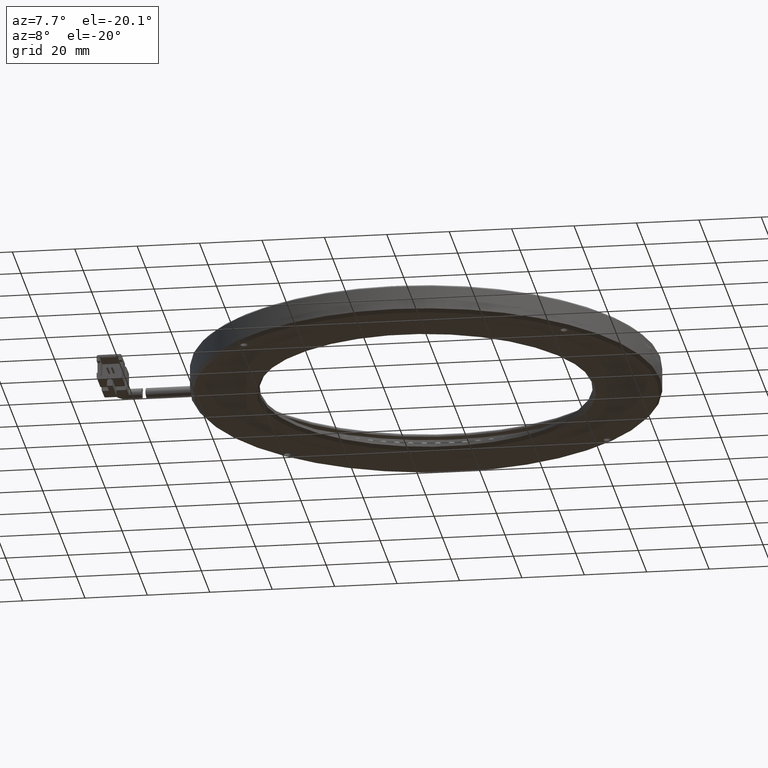
[diagram: clean part render]
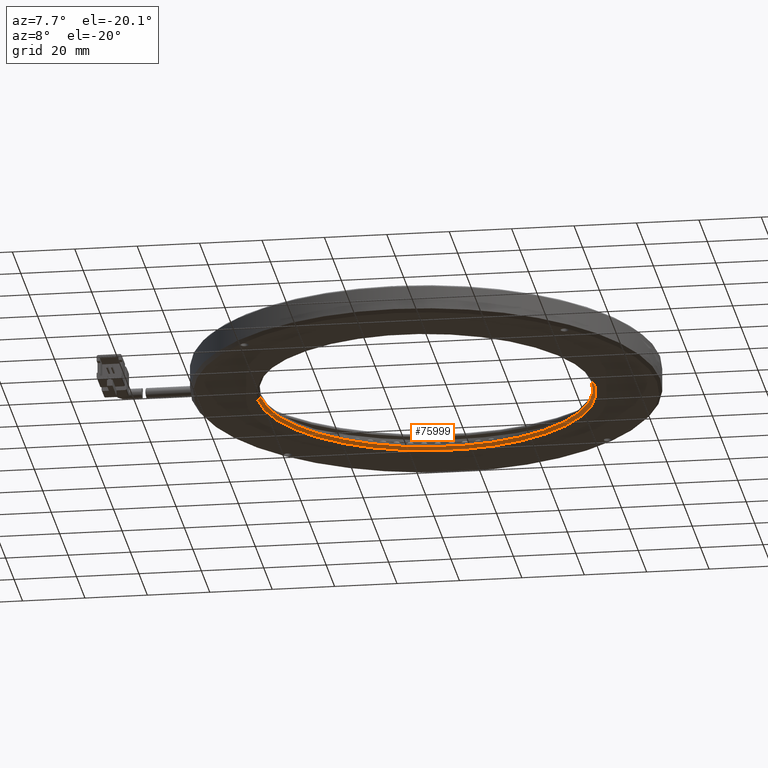
[diagram: same view with one face highlighted and labeled with its STEP entity id]
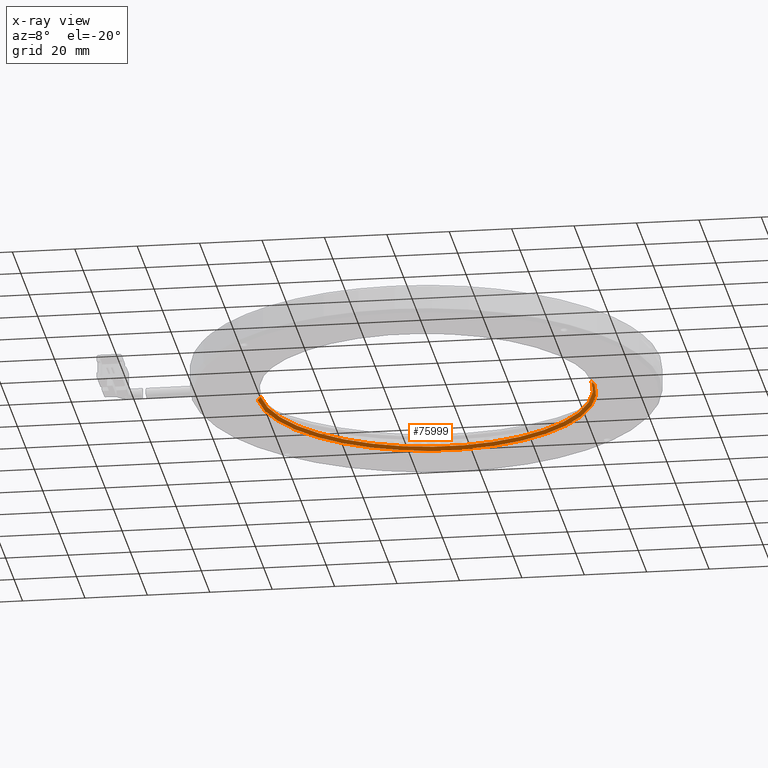
[diagram: x-ray of the same camera — body ghosted, the highlighted face saturated]
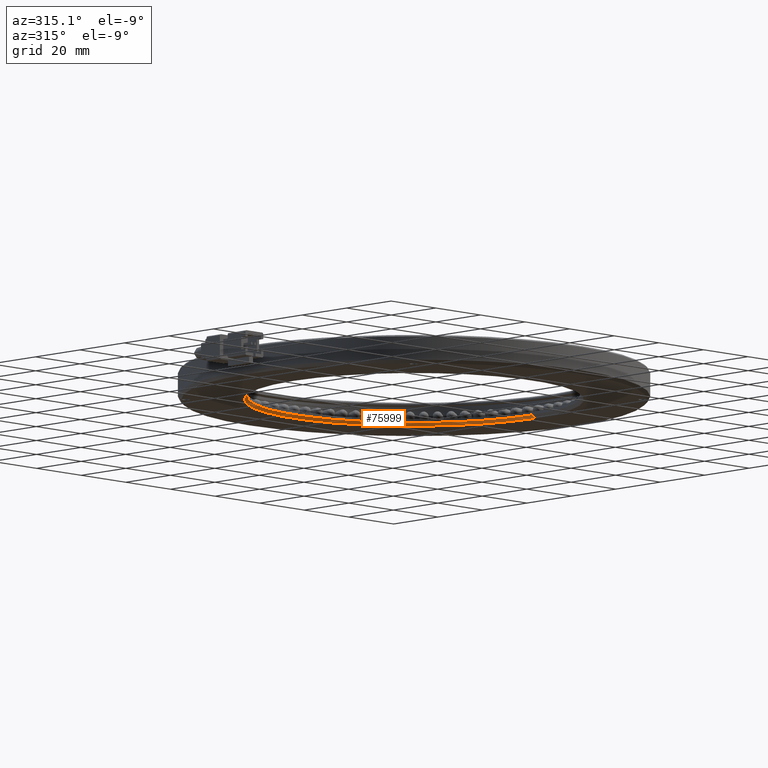
[diagram: same view with one face highlighted and labeled with its STEP entity id]
A machine part, auxiliary view. The second image highlights one B-rep face of the part: STEP entity #75999.
The next image is the same camera in x-ray: the body ghosted, the highlighted face saturated — about 0% of this face is hidden behind the body in this view.
A second angle (auxiliary view) of the same face is appended — the face is thin or edge-on in the first view.
In plain terms, the highlighted conical surface has half-angle 45 deg.
Its self-contained STEP definition (entity closure, byte-faithful):
#2052 = VECTOR ( 'NONE', #21989, 1000.000000000000000 ) ;
#2232 = CONICAL_SURFACE ( 'NONE', #78110, 53.99999999999997900, 0.7853981633974378400 ) ;
#6107 = CARTESIAN_POINT ( 'NONE',  ( 10.82239847715735200, 1.095939086294420100, -2.500000000000068800 ) ) ;
#7751 = CARTESIAN_POINT ( 'NONE',  ( 10.82239847715735200, 1.095939086294420100, -3.500000000000063900 ) ) ;
#8367 = ORIENTED_EDGE ( 'NONE', *, *, #23423, .T. ) ;
#9164 = CARTESIAN_POINT ( 'NONE',  ( -43.17760152284262900, 1.095939086294420100, -3.500000000000063900 ) ) ;
#12236 = DIRECTION ( 'NONE',  ( -1.000000000000000000, 0.0000000000000000000, -2.454797371665292700E-017 ) ) ;
#14433 = DIRECTION ( 'NONE',  ( -1.000000000000000000, 0.0000000000000000000, 0.0000000000000000000 ) ) ;
#15310 = EDGE_CURVE ( 'NONE', #19440, #31959, #55964, .T. ) ;
#15868 = CARTESIAN_POINT ( 'NONE',  ( 64.82239847715733600, 1.095939086294426700, -3.500000000000063900 ) ) ;
#17315 = AXIS2_PLACEMENT_3D ( 'NONE', #6107, #48717, #12236 ) ;
#17938 = CIRCLE ( 'NONE', #17315, 53.00000000000000700 ) ;
#19440 = VERTEX_POINT ( 'NONE', #26879 ) ;
#19743 = DIRECTION ( 'NONE',  ( 0.0000000000000000000, 0.0000000000000000000, -1.000000000000000000 ) ) ;
#21809 = VERTEX_POINT ( 'NONE', #59235 ) ;
#21989 = DIRECTION ( 'NONE',  ( 0.7071067811865401300, 8.659560562354842900E-017, -0.7071067811865549000 ) ) ;
#23423 = EDGE_CURVE ( 'NONE', #21809, #19440, #45640, .T. ) ;
#24003 = CARTESIAN_POINT ( 'NONE',  ( 64.82239847715733600, 1.095939086294426700, -3.500000000000063100 ) ) ;
#26420 = VERTEX_POINT ( 'NONE', #77592 ) ;
#26879 = CARTESIAN_POINT ( 'NONE',  ( -43.17760152284262900, 1.095939086294420100, -3.500000000000063100 ) ) ;
#29156 = EDGE_LOOP ( 'NONE', ( #72728, #52936, #8367, #52740 ) ) ;
#31959 = VERTEX_POINT ( 'NONE', #24003 ) ;
#37543 = FACE_OUTER_BOUND ( 'NONE', #29156, .T. ) ;
#45640 = LINE ( 'NONE', #9164, #61835 ) ;
#45663 = DIRECTION ( 'NONE',  ( -0.7071067811865401300, 0.0000000000000000000, -0.7071067811865549000 ) ) ;
#48717 = DIRECTION ( 'NONE',  ( -0.0000000000000000000, -0.0000000000000000000, -1.000000000000000000 ) ) ;
#50611 = LINE ( 'NONE', #15868, #2052 ) ;
#52740 = ORIENTED_EDGE ( 'NONE', *, *, #15310, .T. ) ;
#52936 = ORIENTED_EDGE ( 'NONE', *, *, #63469, .F. ) ;
#55964 = CIRCLE ( 'NONE', #73726, 53.99999999999997900 ) ;
#56205 = CARTESIAN_POINT ( 'NONE',  ( 10.82239847715735200, 1.095939086294420100, -3.500000000000063100 ) ) ;
#59235 = CARTESIAN_POINT ( 'NONE',  ( -42.17760152284265000, 1.095939086294420100, -2.500000000000070200 ) ) ;
#61835 = VECTOR ( 'NONE', #45663, 1000.000000000000000 ) ;
#62360 = DIRECTION ( 'NONE',  ( -1.000000000000000000, 0.0000000000000000000, 0.0000000000000000000 ) ) ;
#62764 = EDGE_CURVE ( 'NONE', #26420, #31959, #50611, .T. ) ;
#63469 = EDGE_CURVE ( 'NONE', #21809, #26420, #17938, .T. ) ;
#68966 = DIRECTION ( 'NONE',  ( 0.0000000000000000000, 0.0000000000000000000, -1.000000000000000000 ) ) ;
#72728 = ORIENTED_EDGE ( 'NONE', *, *, #62764, .F. ) ;
#73726 = AXIS2_PLACEMENT_3D ( 'NONE', #56205, #19743, #62360 ) ;
#75999 = ADVANCED_FACE ( 'NONE', ( #37543 ), #2232, .F. ) ;
#77592 = CARTESIAN_POINT ( 'NONE',  ( 63.82239847715735700, 1.095939086294426700, -2.500000000000068800 ) ) ;
#78110 = AXIS2_PLACEMENT_3D ( 'NONE', #7751, #68966, #14433 ) ;